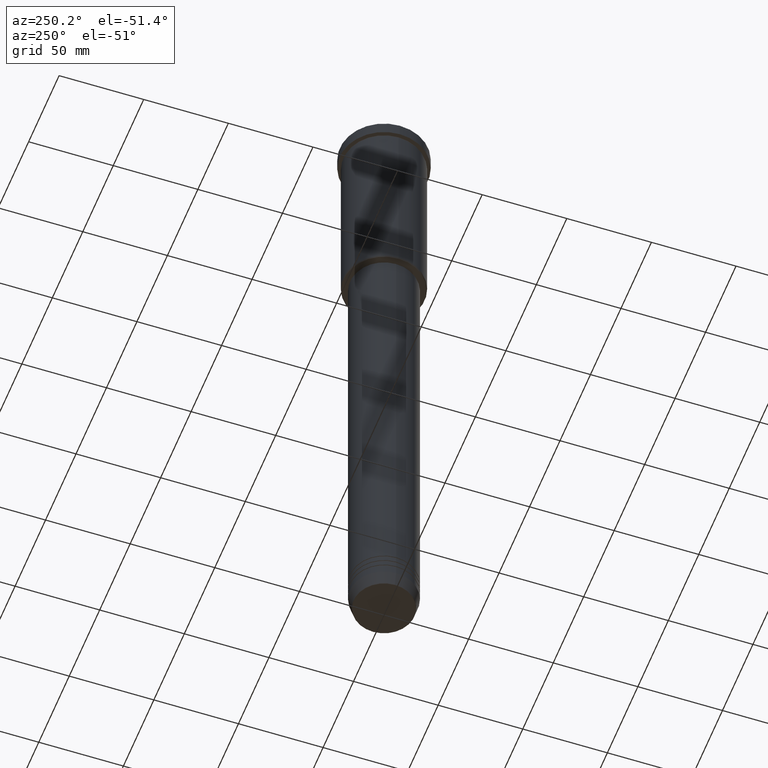
[diagram: clean part render]
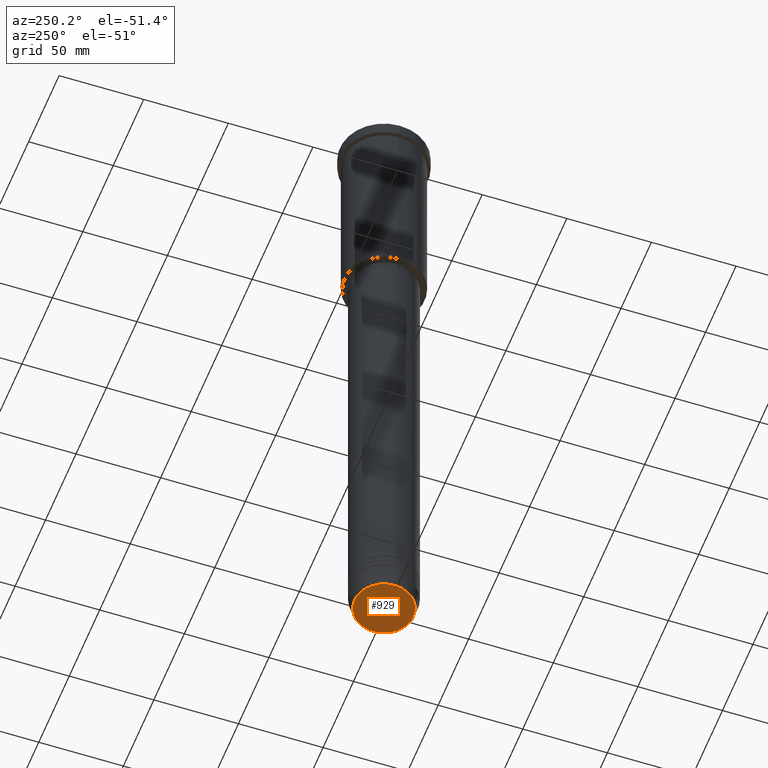
[diagram: same view with one face highlighted and labeled with its STEP entity id]
A machine part, auxiliary view. The second image highlights one B-rep face of the part: STEP entity #929.
In plain terms, the highlighted planar face has unit normal (0, -0, 1).
Its self-contained STEP definition (entity closure, byte-faithful):
#47 = PLANE ( 'NONE',  #864 ) ;
#58 = CIRCLE ( 'NONE', #269, 17.47274296656153680 ) ;
#154 = DIRECTION ( 'NONE',  ( 1.000000000000000000, 0.000000000000000000, 0.000000000000000000 ) ) ;
#167 = CARTESIAN_POINT ( 'NONE',  ( -17.47274296656153680, 2.169366823916868503E-15, -400.0000000000000000 ) ) ;
#269 = AXIS2_PLACEMENT_3D ( 'NONE', #798, #869, #713 ) ;
#372 = DIRECTION ( 'NONE',  ( 0.000000000000000000, 0.000000000000000000, -1.000000000000000000 ) ) ;
#417 = CARTESIAN_POINT ( 'NONE',  ( 0.000000000000000000, 0.000000000000000000, -400.0000000000000000 ) ) ;
#421 = EDGE_CURVE ( 'NONE', #1047, #555, #720, .T. ) ;
#444 = AXIS2_PLACEMENT_3D ( 'NONE', #822, #372, #1100 ) ;
#555 = VERTEX_POINT ( 'NONE', #609 ) ;
#576 = ORIENTED_EDGE ( 'NONE', *, *, #875, .T. ) ;
#609 = CARTESIAN_POINT ( 'NONE',  ( 17.47274296656153680, 0.000000000000000000, -400.0000000000000000 ) ) ;
#694 = DIRECTION ( 'NONE',  ( 0.000000000000000000, -0.000000000000000000, 1.000000000000000000 ) ) ;
#713 = DIRECTION ( 'NONE',  ( 1.000000000000000000, 0.000000000000000000, 0.000000000000000000 ) ) ;
#720 = CIRCLE ( 'NONE', #444, 17.47274296656153680 ) ;
#738 = ORIENTED_EDGE ( 'NONE', *, *, #421, .T. ) ;
#798 = CARTESIAN_POINT ( 'NONE',  ( 0.000000000000000000, 0.000000000000000000, -400.0000000000000000 ) ) ;
#822 = CARTESIAN_POINT ( 'NONE',  ( 0.000000000000000000, 0.000000000000000000, -400.0000000000000000 ) ) ;
#824 = EDGE_LOOP ( 'NONE', ( #576, #738 ) ) ;
#864 = AXIS2_PLACEMENT_3D ( 'NONE', #417, #694, #154 ) ;
#869 = DIRECTION ( 'NONE',  ( 0.000000000000000000, 0.000000000000000000, -1.000000000000000000 ) ) ;
#875 = EDGE_CURVE ( 'NONE', #555, #1047, #58, .T. ) ;
#929 = ADVANCED_FACE ( 'NONE', ( #985 ), #47, .F. ) ;
#985 = FACE_OUTER_BOUND ( 'NONE', #824, .T. ) ;
#1047 = VERTEX_POINT ( 'NONE', #167 ) ;
#1100 = DIRECTION ( 'NONE',  ( 1.000000000000000000, 0.000000000000000000, 0.000000000000000000 ) ) ;